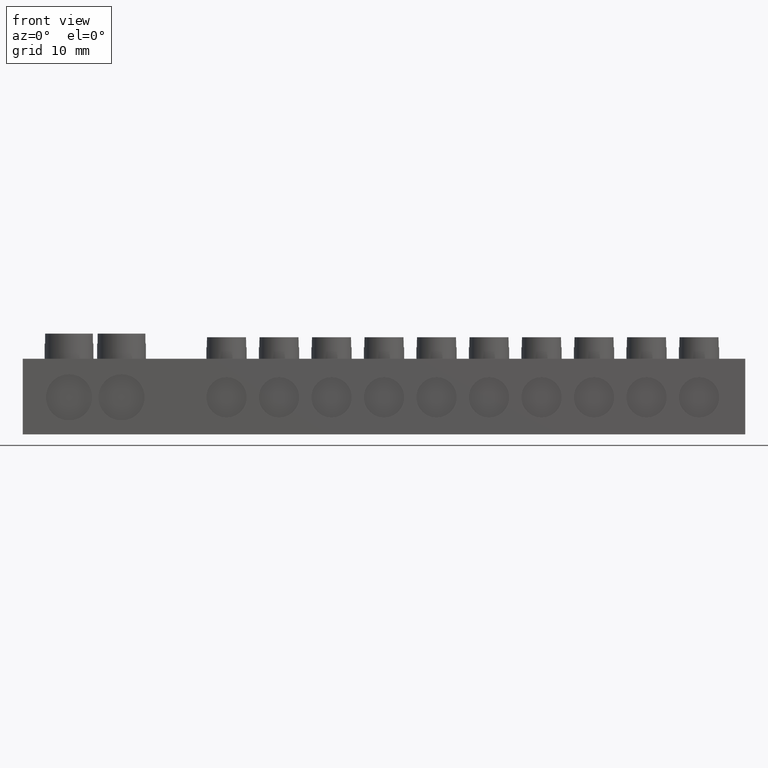
[diagram: clean part render]
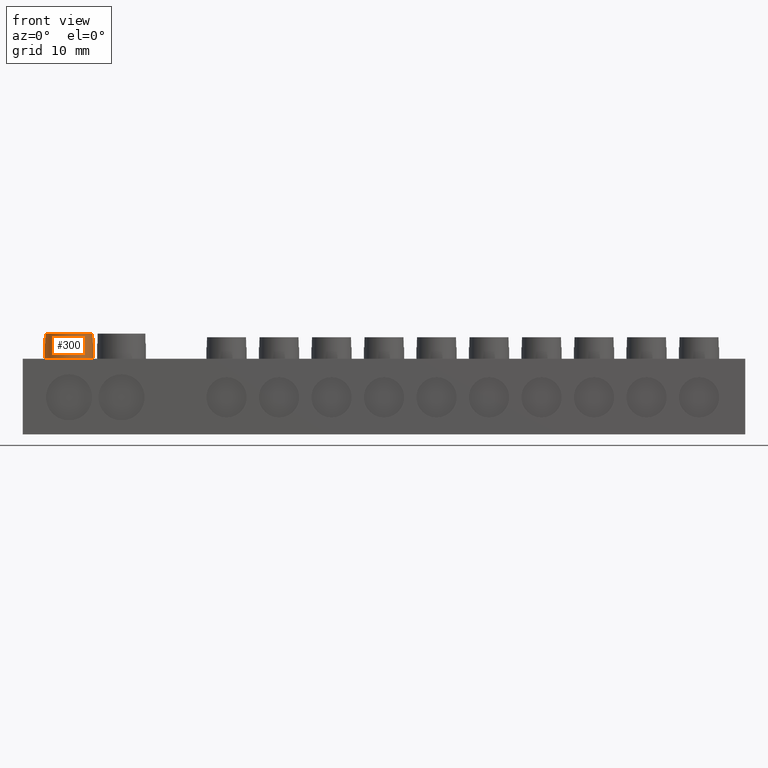
[diagram: same view with one face highlighted and labeled with its STEP entity id]
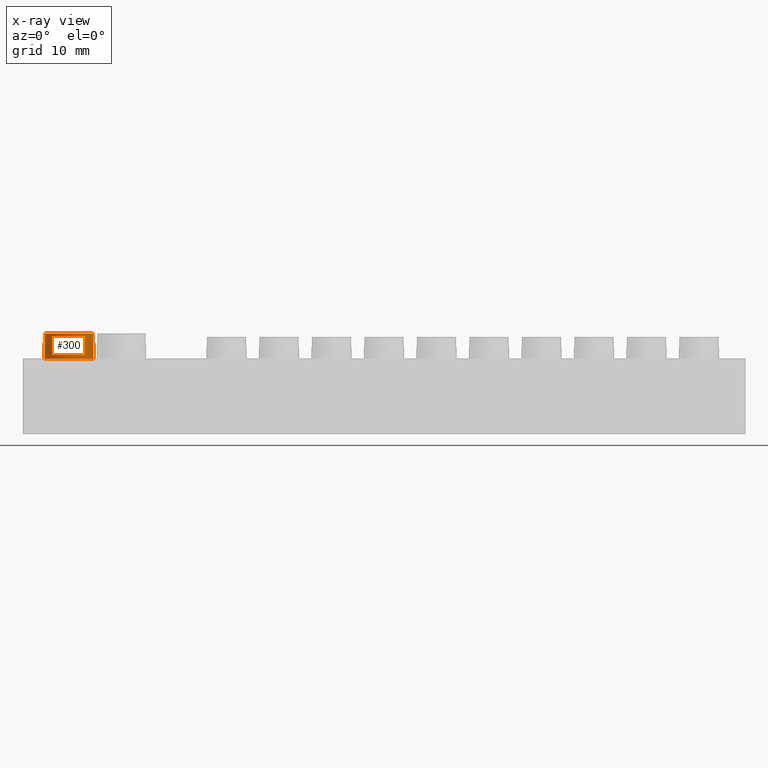
[diagram: x-ray of the same camera — body ghosted, the highlighted face saturated]
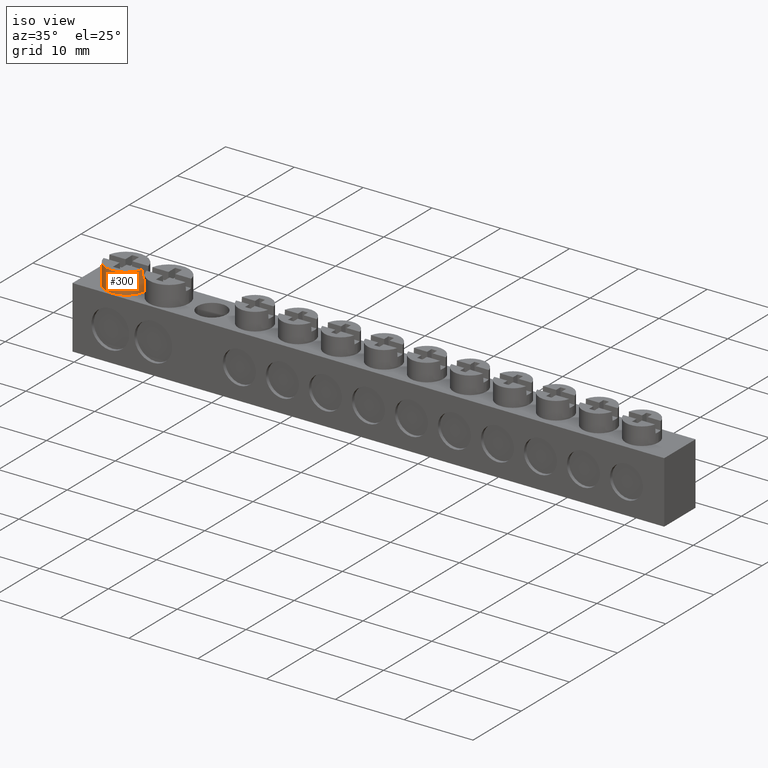
[diagram: same view with one face highlighted and labeled with its STEP entity id]
A machine part, front view. The second image highlights one B-rep face of the part: STEP entity #300.
The next image is the same camera in x-ray: the body ghosted, the highlighted face saturated — about 0% of this face is hidden behind the body in this view.
A second angle (iso view) of the same face is appended — the face is thin or edge-on in the first view.
In plain terms, the highlighted cylindrical surface (edge-blend (fillet) strip) has radius 2.9 mm, axis along (0, 0, 1).
Its self-contained STEP definition (entity closure, byte-faithful):
#10 = EDGE_CURVE ( 'NONE', #7631, #7023, #1568, .T. ) ;
#14 = EDGE_CURVE ( 'NONE', #7023, #7014, #8004, .T. ) ;
#35 = EDGE_CURVE ( 'NONE', #7014, #7652, #1569, .T. ) ;
#81 = EDGE_CURVE ( 'NONE', #3951, #3963, #7647, .T. ) ;
#300 = ADVANCED_FACE ( 'NONE', ( #4662 ), #4660, .T. ) ;
#482 = CARTESIAN_POINT ( 'NONE',  ( 8.120098999966106800, 2.687977991218967900, 11.20087625544944900 ) ) ;
#488 = CARTESIAN_POINT ( 'NONE',  ( 8.124087409052409100, 2.708981575564129300, 10.79999999999999900 ) ) ;
#490 = CARTESIAN_POINT ( 'NONE',  ( 8.111426681140946100, 2.646109544278274100, 12.00000000000000000 ) ) ;
#493 = CARTESIAN_POINT ( 'NONE',  ( 5.275000000000003900, 3.250000000000000400, 11.99999999999999800 ) ) ;
#500 = DIRECTION ( 'NONE',  ( -6.938893903907226800E-018, -0.0000000000000000000, -1.000000000000000000 ) ) ;
#501 = DIRECTION ( 'NONE',  ( 1.000000000000000000, 0.0000000000000000000, 0.0000000000000000000 ) ) ;
#509 = CARTESIAN_POINT ( 'NONE',  ( 8.115878585312678700, 2.667019793239724400, 11.60089255937234800 ) ) ;
#569 = CARTESIAN_POINT ( 'NONE',  ( 2.436927633660616300, 2.653891584172169100, 12.00000000000000000 ) ) ;
#573 = CARTESIAN_POINT ( 'NONE',  ( 2.432533098992807100, 2.674813965189575300, 11.60089255937236700 ) ) ;
#579 = CARTESIAN_POINT ( 'NONE',  ( 2.424439399162453800, 2.716798104886452200, 10.79999999999999900 ) ) ;
#592 = CARTESIAN_POINT ( 'NONE',  ( 2.428370184487409500, 2.695783660113554500, 11.20087625544947900 ) ) ;
#721 = DIRECTION ( 'NONE',  ( 6.938893903907226800E-018, 0.0000000000000000000, 1.000000000000000000 ) ) ;
#730 = CARTESIAN_POINT ( 'NONE',  ( 5.275000000000003900, 3.250000000000000400, 9.000000000000001800 ) ) ;
#739 = DIRECTION ( 'NONE',  ( 1.000000000000000000, 0.0000000000000000000, 0.0000000000000000000 ) ) ;
#1568 =( BOUNDED_CURVE ( )  B_SPLINE_CURVE ( 3, ( #488, #482, #509, #490 ),
 .UNSPECIFIED., .F., .F. ) 
 B_SPLINE_CURVE_WITH_KNOTS ( ( 4, 4 ),
 ( 4.898675119793455900, 4.920790786976435300 ),
 .UNSPECIFIED. ) 
 CURVE ( )  GEOMETRIC_REPRESENTATION_ITEM ( )  RATIONAL_B_SPLINE_CURVE ( ( 1.000000000000000000, 0.9999592418540675900, 0.9999592418540675900, 1.000000000000000000 ) ) 
 REPRESENTATION_ITEM ( '' )  );
#1569 =( BOUNDED_CURVE ( )  B_SPLINE_CURVE ( 3, ( #569, #573, #592, #579 ),
 .UNSPECIFIED., .F., .T. ) 
 B_SPLINE_CURVE_WITH_KNOTS ( ( 4, 4 ),
 ( 1.362394520203150900, 1.384510187386129900 ),
 .UNSPECIFIED. ) 
 CURVE ( )  GEOMETRIC_REPRESENTATION_ITEM ( )  RATIONAL_B_SPLINE_CURVE ( ( 1.000000000000000000, 0.9999592418540675900, 0.9999592418540675900, 1.000000000000000000 ) ) 
 REPRESENTATION_ITEM ( '' )  );
#2140 = CARTESIAN_POINT ( 'NONE',  ( 8.175000000000006000, 3.250000000000000400, 9.000000000000001800 ) ) ;
#2164 = LINE ( 'NONE', #2140, #2480 ) ;
#2219 = DIRECTION ( 'NONE',  ( 6.938893903907226800E-018, 0.0000000000000000000, 1.000000000000000000 ) ) ;
#2268 = CARTESIAN_POINT ( 'NONE',  ( 8.111426681140946100, 2.646109544278274100, 12.00000000000000000 ) ) ;
#2298 = CARTESIAN_POINT ( 'NONE',  ( 2.436927633660616300, 2.653891584172169100, 12.00000000000000000 ) ) ;
#2480 = VECTOR ( 'NONE', #2219, 1000.000000000000000 ) ;
#2868 = CIRCLE ( 'NONE', #2872, 2.900000000000001700 ) ;
#2872 = AXIS2_PLACEMENT_3D ( 'NONE', #5348, #5318, #5359 ) ;
#2888 = AXIS2_PLACEMENT_3D ( 'NONE', #6223, #6190, #6194 ) ;
#2902 = CIRCLE ( 'NONE', #2888, 2.900000000000001700 ) ;
#2969 = VECTOR ( 'NONE', #6665, 1000.000000000000000 ) ;
#3016 = EDGE_CURVE ( 'NONE', #7652, #3982, #2868, .T. ) ;
#3057 = EDGE_CURVE ( 'NONE', #4110, #7631, #2902, .T. ) ;
#3225 = ORIENTED_EDGE ( 'NONE', *, *, #81, .T. ) ;
#3228 = ORIENTED_EDGE ( 'NONE', *, *, #4519, .F. ) ;
#3231 = ORIENTED_EDGE ( 'NONE', *, *, #6110, .T. ) ;
#3255 = ORIENTED_EDGE ( 'NONE', *, *, #14, .T. ) ;
#3260 = ORIENTED_EDGE ( 'NONE', *, *, #3016, .T. ) ;
#3267 = ORIENTED_EDGE ( 'NONE', *, *, #35, .T. ) ;
#3325 = ORIENTED_EDGE ( 'NONE', *, *, #3057, .T. ) ;
#3326 = ORIENTED_EDGE ( 'NONE', *, *, #10, .T. ) ;
#3951 = VERTEX_POINT ( 'NONE', #6481 ) ;
#3963 = VERTEX_POINT ( 'NONE', #6561 ) ;
#3982 = VERTEX_POINT ( 'NONE', #6517 ) ;
#4110 = VERTEX_POINT ( 'NONE', #6554 ) ;
#4217 = EDGE_LOOP ( 'NONE', ( #3228, #3225, #3231, #3325, #3326, #3255, #3267, #3260 ) ) ;
#4519 = EDGE_CURVE ( 'NONE', #3951, #3982, #6660, .T. ) ;
#4651 = DIRECTION ( 'NONE',  ( 6.938893903907226800E-018, 0.0000000000000000000, 1.000000000000000000 ) ) ;
#4660 = CYLINDRICAL_SURFACE ( 'NONE', #7891, 2.900000000000001700 ) ;
#4662 = FACE_OUTER_BOUND ( 'NONE', #4217, .T. ) ;
#4667 = CARTESIAN_POINT ( 'NONE',  ( 5.275000000000003900, 3.250000000000000400, 9.000000000000001800 ) ) ;
#4669 = DIRECTION ( 'NONE',  ( 1.000000000000000000, 0.0000000000000000000, 0.0000000000000000000 ) ) ;
#5318 = DIRECTION ( 'NONE',  ( -6.938893903907226800E-018, -0.0000000000000000000, -1.000000000000000000 ) ) ;
#5348 = CARTESIAN_POINT ( 'NONE',  ( 5.275000000000003900, 3.250000000000000400, 10.79999999999999900 ) ) ;
#5359 = DIRECTION ( 'NONE',  ( 1.000000000000000000, 7.178166107490232300E-015, 0.0000000000000000000 ) ) ;
#5731 = CARTESIAN_POINT ( 'NONE',  ( 8.124087409052409100, 2.708981575564129300, 10.79999999999999900 ) ) ;
#5818 = CARTESIAN_POINT ( 'NONE',  ( 2.424439399162453800, 2.716798104886452200, 10.79999999999999900 ) ) ;
#6110 = EDGE_CURVE ( 'NONE', #3963, #4110, #2164, .T. ) ;
#6190 = DIRECTION ( 'NONE',  ( -6.938893903907226800E-018, -0.0000000000000000000, -1.000000000000000000 ) ) ;
#6194 = DIRECTION ( 'NONE',  ( 1.000000000000000000, 0.0000000000000000000, 0.0000000000000000000 ) ) ;
#6223 = CARTESIAN_POINT ( 'NONE',  ( 5.275000000000003900, 3.250000000000000400, 10.79999999999999900 ) ) ;
#6481 = CARTESIAN_POINT ( 'NONE',  ( 2.375000000000002200, 3.250000000000000900, 9.000000000000001800 ) ) ;
#6517 = CARTESIAN_POINT ( 'NONE',  ( 2.375000000000002200, 3.250000000000000900, 10.79999999999999900 ) ) ;
#6554 = CARTESIAN_POINT ( 'NONE',  ( 8.175000000000006000, 3.250000000000000400, 10.79999999999999900 ) ) ;
#6561 = CARTESIAN_POINT ( 'NONE',  ( 8.175000000000006000, 3.250000000000000400, 9.000000000000001800 ) ) ;
#6660 = LINE ( 'NONE', #6661, #2969 ) ;
#6661 = CARTESIAN_POINT ( 'NONE',  ( 2.375000000000002200, 3.250000000000000900, 9.000000000000001800 ) ) ;
#6665 = DIRECTION ( 'NONE',  ( 6.938893903907226800E-018, 0.0000000000000000000, 1.000000000000000000 ) ) ;
#7014 = VERTEX_POINT ( 'NONE', #2298 ) ;
#7023 = VERTEX_POINT ( 'NONE', #2268 ) ;
#7586 = AXIS2_PLACEMENT_3D ( 'NONE', #730, #721, #739 ) ;
#7631 = VERTEX_POINT ( 'NONE', #5731 ) ;
#7647 = CIRCLE ( 'NONE', #7586, 2.900000000000001700 ) ;
#7652 = VERTEX_POINT ( 'NONE', #5818 ) ;
#7891 = AXIS2_PLACEMENT_3D ( 'NONE', #4667, #4651, #4669 ) ;
#8004 = CIRCLE ( 'NONE', #8019, 2.900000000000001700 ) ;
#8019 = AXIS2_PLACEMENT_3D ( 'NONE', #493, #500, #501 ) ;